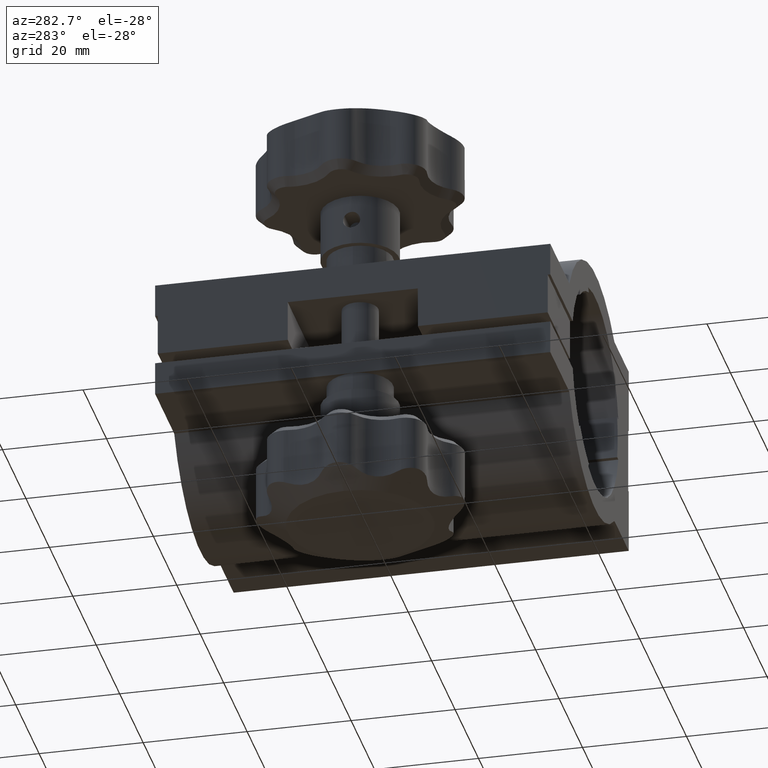
[diagram: clean part render]
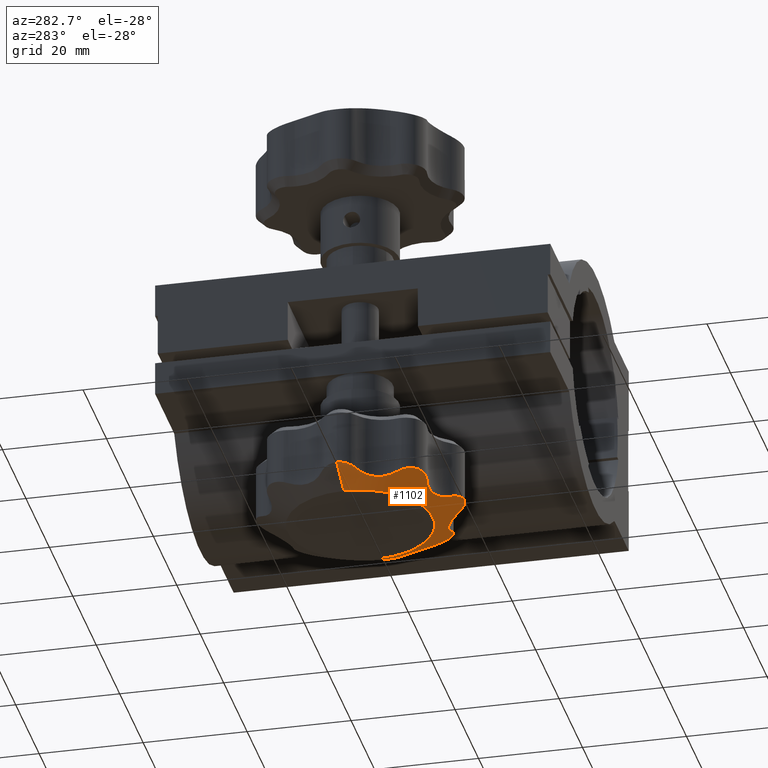
[diagram: same view with one face highlighted and labeled with its STEP entity id]
A machine part, auxiliary view. The second image highlights one B-rep face of the part: STEP entity #1102.
In plain terms, the highlighted conical surface has half-angle 63.435 deg.
Its self-contained STEP definition (entity closure, byte-faithful):
#54 = CARTESIAN_POINT ( 'NONE',  ( -44.66012957589782000, -53.12568092388098500, -37.67053539441126700 ) ) ;
#109 = CARTESIAN_POINT ( 'NONE',  ( -35.40478620523413900, -56.25352793142091200, -38.22485992281697500 ) ) ;
#113 = CARTESIAN_POINT ( 'NONE',  ( -13.88223716818888500, -41.32845871637075400, -38.24033585891610400 ) ) ;
#156 = CARTESIAN_POINT ( 'NONE',  ( -16.71886717815796400, -45.16598530818883000, -39.01692354944882600 ) ) ;
#167 = CARTESIAN_POINT ( 'NONE',  ( -45.46821607378692700, -52.75867977955827800, -37.54453930342222600 ) ) ;
#229 = DIRECTION ( 'NONE',  ( -1.000000000000000000, 0.0000000000000000000, 0.0000000000000000000 ) ) ;
#301 = CARTESIAN_POINT ( 'NONE',  ( -12.94071860659726000, -40.47370662078219500, -37.84174923558720800 ) ) ;
#306 = ORIENTED_EDGE ( 'NONE', *, *, #2606, .T. ) ;
#307 = VECTOR ( 'NONE', #9035, 1000.000000000000100 ) ;
#371 = CARTESIAN_POINT ( 'NONE',  ( -18.89080392035378300, -52.83961310875488200, -37.56684448148186600 ) ) ;
#377 = EDGE_CURVE ( 'NONE', #7988, #5554, #3874, .T. ) ;
#428 = EDGE_CURVE ( 'NONE', #6793, #1251, #4663, .T. ) ;
#500 = CARTESIAN_POINT ( 'NONE',  ( -47.20738803912959000, -47.90910789619256600, -38.46940100193022300 ) ) ;
#547 = CARTESIAN_POINT ( 'NONE',  ( -47.45554102642859800, -45.14396101317564100, -39.03961434932778500 ) ) ;
#550 = CARTESIAN_POINT ( 'NONE',  ( -28.79521379476571900, -56.25352793142079800, -38.22485992281703200 ) ) ;
#562 = CARTESIAN_POINT ( 'NONE',  ( -50.85139008752452100, -40.92084771011150900, -38.01216060073313200 ) ) ;
#576 = CARTESIAN_POINT ( 'NONE',  ( -28.61063215740972900, -55.97279189928720900, -38.34654056907867000 ) ) ;
#581 = CARTESIAN_POINT ( 'NONE',  ( -49.29056716154377700, -42.15159542625189500, -38.65869961730669500 ) ) ;
#592 = CARTESIAN_POINT ( 'NONE',  ( -51.46904075900229700, -40.18043106480287500, -37.75545086922186800 ) ) ;
#606 = CARTESIAN_POINT ( 'NONE',  ( -27.70792939289166100, -54.95640232951831200, -38.74345401188455200 ) ) ;
#638 = CARTESIAN_POINT ( 'NONE',  ( -33.70477250926376900, -57.66767497149130200, -37.63379586593643500 ) ) ;
#831 = B_SPLINE_CURVE_WITH_KNOTS ( 'NONE', 3,
 ( #2196, #2291, #10539, #7261 ),
 .UNSPECIFIED., .F., .F.,
 ( 4, 4 ),
 ( 0.006983299536700530500, 0.008428194713404564600 ),
 .UNSPECIFIED. ) ;
#835 = CARTESIAN_POINT ( 'NONE',  ( -46.10000000000011500, -38.00000000000000000, -40.49999999999996400 ) ) ;
#907 = ORIENTED_EDGE ( 'NONE', *, *, #7511, .T. ) ;
#951 = CARTESIAN_POINT ( 'NONE',  ( -14.76782969554145500, -41.99629979607096400, -38.61009337619768900 ) ) ;
#993 = CARTESIAN_POINT ( 'NONE',  ( -46.17825828219992700, -52.21981348709096000, -37.49609047640726100 ) ) ;
#999 = DIRECTION ( 'NONE',  ( 0.8944271909999160800, 8.238756819837753700E-017, 0.4472135954999574300 ) ) ;
#1102 = ADVANCED_FACE ( 'NONE', ( #3450 ), #10359, .T. ) ;
#1135 = CIRCLE ( 'NONE', #8547, 14.00000000000005300 ) ;
#1203 = CARTESIAN_POINT ( 'NONE',  ( -13.61760040435778900, -41.15213038281837800, -38.12601777575489600 ) ) ;
#1212 = CARTESIAN_POINT ( 'NONE',  ( -42.00169043201688600, -53.13089662217183200, -38.45966632413355800 ) ) ;
#1251 = VERTEX_POINT ( 'NONE', #2050 ) ;
#1282 = CARTESIAN_POINT ( 'NONE',  ( -16.77678188941500200, -49.15710625937498400, -38.02355978083540600 ) ) ;
#1357 = CARTESIAN_POINT ( 'NONE',  ( -17.71814102786622100, -51.90166590177382500, -37.50024724159735000 ) ) ;
#1369 = CARTESIAN_POINT ( 'NONE',  ( -22.23080089748582800, -53.10348109542605500, -38.48199098200522900 ) ) ;
#1387 = CARTESIAN_POINT ( 'NONE',  ( -50.61381992292925200, -41.12729355162103000, -38.11260631183434800 ) ) ;
#1459 = CARTESIAN_POINT ( 'NONE',  ( -52.09999999999999400, -38.00000000000002100, -37.49999999999999300 ) ) ;
#1470 = CARTESIAN_POINT ( 'NONE',  ( -22.90655202098139000, -53.06433490898462700, -38.68178717431253200 ) ) ;
#1474 = CARTESIAN_POINT ( 'NONE',  ( -35.02102367627743700, -56.75120936679206100, -38.01223660148910700 ) ) ;
#1506 = CARTESIAN_POINT ( 'NONE',  ( -29.65075012321517900, -57.17844578804674400, -37.83379426854016000 ) ) ;
#1524 = CARTESIAN_POINT ( 'NONE',  ( -51.27904389336190100, -40.44850539788461700, -37.83354631144492000 ) ) ;
#1537 = CARTESIAN_POINT ( 'NONE',  ( -32.75840555617480700, -57.94889363502431900, -37.52046013489440000 ) ) ;
#1582 = CARTESIAN_POINT ( 'NONE',  ( -34.27574192347815800, -57.36041010367814900, -37.75911893758380700 ) ) ;
#1719 = CARTESIAN_POINT ( 'NONE',  ( -35.40478620523413900, -56.25352793142091200, -38.22485992281697500 ) ) ;
#1747 = CARTESIAN_POINT ( 'NONE',  ( -15.86447905035085300, -43.31969231248008600, -38.95868190350356700 ) ) ;
#1750 = CARTESIAN_POINT ( 'NONE',  ( -40.97482916437672900, -53.09593124593506300, -38.74575812781843400 ) ) ;
#1820 = VERTEX_POINT ( 'NONE', #550 ) ;
#1823 = CARTESIAN_POINT ( 'NONE',  ( -14.34352213587840200, -41.63581438558282600, -38.43960225158907900 ) ) ;
#2050 = CARTESIAN_POINT ( 'NONE',  ( -52.09999999999999400, -38.00000000000002100, -37.49999999999999300 ) ) ;
#2110 = CARTESIAN_POINT ( 'NONE',  ( -17.05083891127135600, -50.75279802072809300, -37.63736774476461000 ) ) ;
#2187 = CARTESIAN_POINT ( 'NONE',  ( -26.90348876721808200, -54.28291368119418800, -38.95993102340418800 ) ) ;
#2196 = CARTESIAN_POINT ( 'NONE',  ( -17.00080158232996300, -47.15378770217299800, -38.67138711132054900 ) ) ;
#2246 = CARTESIAN_POINT ( 'NONE',  ( -51.76733001019321300, -39.60547908493235500, -37.63393594762446500 ) ) ;
#2264 = CARTESIAN_POINT ( 'NONE',  ( -17.00080158232996300, -47.15378770217299800, -38.67138711132054900 ) ) ;
#2271 = CARTESIAN_POINT ( 'NONE',  ( -52.05893524507906300, -38.66032219999979700, -37.51638630186256800 ) ) ;
#2288 = CARTESIAN_POINT ( 'NONE',  ( -33.23925231646457200, -57.83786311334861100, -37.56505322317966000 ) ) ;
#2291 = CARTESIAN_POINT ( 'NONE',  ( -17.00080158232996300, -47.62067722935753300, -38.55036561943661200 ) ) ;
#2439 = CARTESIAN_POINT ( 'NONE',  ( -32.92010242349283500, -57.91848454537629500, -37.53264634346334100 ) ) ;
#2485 = B_SPLINE_CURVE_WITH_KNOTS ( 'NONE', 3,
 ( #6109, #5269, #6248, #9448, #5379, #10344, #6997, #4420, #301, #9548, #1203, #5408 ),
 .UNSPECIFIED., .F., .F.,
 ( 4, 2, 2, 2, 2, 4 ),
 ( 0.004005058143944475000, 0.005005288832176255100, 0.005505404176292147700, 0.006005519520408038700, 0.007005750208639801400, 0.008005980896871562500 ),
 .UNSPECIFIED. ) ;
#2501 = LINE ( 'NONE', #835, #307 ) ;
#2513 = CARTESIAN_POINT ( 'NONE',  ( -17.00080158232996300, -47.15378770217299800, -38.67138711132054900 ) ) ;
#2596 = VECTOR ( 'NONE', #999, 1000.000000000000100 ) ;
#2606 = EDGE_CURVE ( 'NONE', #9718, #10472, #4337, .T. ) ;
#2609 = CARTESIAN_POINT ( 'NONE',  ( -16.29325567920174900, -44.07338276573889100, -39.03452507713995300 ) ) ;
#2646 = CARTESIAN_POINT ( 'NONE',  ( -13.88223716818888500, -41.32845871637075400, -38.24033585891610400 ) ) ;
#2653 = CARTESIAN_POINT ( 'NONE',  ( -47.25698956379532900, -50.46004739861599100, -37.69032643883004100 ) ) ;
#2800 = B_SPLINE_CURVE_WITH_KNOTS ( 'NONE', 3,
 ( #3193, #5614, #9015, #1506, #3259, #7409, #8988, #9783, #6574, #4914, #5765, #9845, #7325, #1537, #2439, #2288, #9914, #638, #10598, #8253, #1582, #10675, #8221, #1474, #9083, #5720 ),
 .UNSPECIFIED., .F., .F.,
 ( 4, 2, 2, 2, 2, 2, 2, 2, 2, 2, 2, 2, 4 ),
 ( 2.535578231248684800E-007, 0.0009895285573015674600, 0.001978803556780010000, 0.002473441056519240500, 0.002968078556258470600, 0.003957353555736923800, 0.004451991055476149500, 0.004946628555215376900, 0.005441266054954603500, 0.005935903554693829200, 0.006430541054433056700, 0.006925178554172282400, 0.007914453553650729500 ),
 .UNSPECIFIED. ) ;
#3007 = CARTESIAN_POINT ( 'NONE',  ( -18.10000000000006200, -38.00000000000000000, -40.49999999999996400 ) ) ;
#3018 = CARTESIAN_POINT ( 'NONE',  ( -28.40475708146340800, -55.70379304802195000, -38.45838642775336100 ) ) ;
#3026 = CARTESIAN_POINT ( 'NONE',  ( -47.34403011697811100, -48.57035664479007400, -38.22485992281786300 ) ) ;
#3120 = CARTESIAN_POINT ( 'NONE',  ( -24.30160313900633200, -53.19602572744708600, -38.96589153346570100 ) ) ;
#3126 = CARTESIAN_POINT ( 'NONE',  ( -47.28991809847259700, -45.82807351241807900, -38.96184153804624400 ) ) ;
#3136 = B_SPLINE_CURVE_WITH_KNOTS ( 'NONE', 3,
 ( #6685, #5988, #9194, #4218, #3444, #54, #4298, #167, #4997, #993, #5073, #6799, #5840, #7632, #2653, #9127, #4144, #9949 ),
 .UNSPECIFIED., .F., .F.,
 ( 4, 2, 2, 2, 2, 2, 2, 2, 4 ),
 ( 2.132076626129120100E-007, 0.0008915703042341947500, 0.001782927400805776700, 0.002674284497377358300, 0.003565641593948940400, 0.004456998690520522000, 0.005348355787092103200, 0.006239712883663685300, 0.007131069980235267400 ),
 .UNSPECIFIED. ) ;
#3185 = VERTEX_POINT ( 'NONE', #9160 ) ;
#3193 = CARTESIAN_POINT ( 'NONE',  ( -28.79521379476571900, -56.25352793142079800, -38.22485992281703200 ) ) ;
#3215 = CARTESIAN_POINT ( 'NONE',  ( -47.34403011697811100, -48.57035664479007400, -38.22485992281786300 ) ) ;
#3237 = VERTEX_POINT ( 'NONE', #4935 ) ;
#3259 = CARTESIAN_POINT ( 'NONE',  ( -29.91857331750082200, -57.36837264774089100, -37.75572514801544300 ) ) ;
#3362 = CARTESIAN_POINT ( 'NONE',  ( -39.23376069904001900, -53.35858938507454500, -39.04038282518996500 ) ) ;
#3395 = CARTESIAN_POINT ( 'NONE',  ( -16.01729742824964500, -43.56412882288135100, -38.99219813928076000 ) ) ;
#3397 = CARTESIAN_POINT ( 'NONE',  ( -16.86452063433292600, -48.52832790717667400, -38.24033585891610400 ) ) ;
#3444 = CARTESIAN_POINT ( 'NONE',  ( -44.09522184706607800, -53.26595328208326700, -37.79349321168053400 ) ) ;
#3450 = FACE_OUTER_BOUND ( 'NONE', #5335, .T. ) ;
#3463 = CARTESIAN_POINT ( 'NONE',  ( -16.91293198357811200, -46.01102566715181300, -38.91583570076403500 ) ) ;
#3490 = ORIENTED_EDGE ( 'NONE', *, *, #6116, .T. ) ;
#3592 = CARTESIAN_POINT ( 'NONE',  ( -42.67035664479234200, -53.24403011697850000, -38.22485992281708900 ) ) ;
#3671 = VERTEX_POINT ( 'NONE', #8254 ) ;
#3808 = CARTESIAN_POINT ( 'NONE',  ( -16.86452063433292600, -48.52832790717667400, -38.24033585891610400 ) ) ;
#3853 = ORIENTED_EDGE ( 'NONE', *, *, #3990, .T. ) ;
#3874 = B_SPLINE_CURVE_WITH_KNOTS ( 'NONE', 3,
 ( #3808, #8652, #1282, #5490, #4598, #7850, #7884, #4529, #2110, #6328, #4489, #10421, #1357, #10318, #5355, #371, #5631, #8896, #10556, #4783, #6494, #4713, #3909, #8830 ),
 .UNSPECIFIED., .F., .F.,
 ( 4, 2, 2, 2, 2, 2, 2, 2, 2, 2, 2, 4 ),
 ( 2.138698642237757300E-007, 0.001000929719184368800, 0.001501287643844431300, 0.002001645568504493700, 0.002502003493164556100, 0.003002361417824619400, 0.004003077267144724600, 0.005003793116464830300, 0.005504151041124884400, 0.006004508965784937700, 0.007005224815105033800, 0.008005940664425129100 ),
 .UNSPECIFIED. ) ;
#3909 = CARTESIAN_POINT ( 'NONE',  ( -21.25971093928263000, -53.29795324385062100, -38.12596214254276100 ) ) ;
#3990 = EDGE_CURVE ( 'NONE', #9959, #7857, #7660, .T. ) ;
#4053 = CARTESIAN_POINT ( 'NONE',  ( -47.41370849898478900, -49.31370849898476600, -37.98015667156386100 ) ) ;
#4144 = CARTESIAN_POINT ( 'NONE',  ( -47.41370849898479600, -49.59880840360024500, -37.89545104399661600 ) ) ;
#4199 = CARTESIAN_POINT ( 'NONE',  ( -42.33955705669013300, -53.17567287144015600, -38.34719525943001600 ) ) ;
#4218 = CARTESIAN_POINT ( 'NONE',  ( -43.80280743036491500, -53.30498561043226100, -37.86745391469082000 ) ) ;
#4238 = CARTESIAN_POINT ( 'NONE',  ( -15.34599667587986000, -42.62499657811743200, -38.81058077844889500 ) ) ;
#4298 = CARTESIAN_POINT ( 'NONE',  ( -44.93499254157077200, -53.02511299872189500, -37.62062735974647200 ) ) ;
#4321 = CARTESIAN_POINT ( 'NONE',  ( -16.98358796142307600, -46.58444936998705500, -38.80910500011903300 ) ) ;
#4337 = B_SPLINE_CURVE_WITH_KNOTS ( 'NONE', 3,
 ( #113, #1823, #951, #4238, #5863, #1747, #3395, #2609, #8419, #4987, #156, #8464, #3463, #4321, #5828, #2513 ),
 .UNSPECIFIED., .F., .F.,
 ( 4, 2, 2, 2, 2, 2, 2, 4 ),
 ( 2.523011973762757000E-007, 0.001746014110073183100, 0.002618895014511076400, 0.003491775918948967200, 0.004364656823386857600, 0.005237537727824748000, 0.006110418632262639200, 0.006983299536700530500 ),
 .UNSPECIFIED. ) ;
#4339 = ORIENTED_EDGE ( 'NONE', *, *, #377, .T. ) ;
#4353 = ORIENTED_EDGE ( 'NONE', *, *, #4427, .T. ) ;
#4420 = CARTESIAN_POINT ( 'NONE',  ( -12.74656081910106700, -40.20429954207232000, -37.76188430901044800 ) ) ;
#4427 = EDGE_CURVE ( 'NONE', #10472, #7988, #831, .T. ) ;
#4429 = EDGE_CURVE ( 'NONE', #7236, #6793, #9203, .T. ) ;
#4489 = CARTESIAN_POINT ( 'NONE',  ( -17.25944995574649700, -51.20747206479042300, -37.56706851643818400 ) ) ;
#4529 = CARTESIAN_POINT ( 'NONE',  ( -16.99502649657285900, -50.59828612999255200, -37.66569268401077200 ) ) ;
#4598 = CARTESIAN_POINT ( 'NONE',  ( -16.81326742720492000, -49.80255016953155700, -37.84386468517838200 ) ) ;
#4663 = B_SPLINE_CURVE_WITH_KNOTS ( 'NONE', 3,
 ( #9798, #1387, #562, #1524, #592, #7205, #2246, #7278, #10616, #2271, #6365, #1459 ),
 .UNSPECIFIED., .F., .F.,
 ( 4, 2, 2, 2, 2, 4 ),
 ( 2.535578288699374200E-007, 0.0009902620523125525100, 0.001980270546796235100, 0.002475274794038081300, 0.002970279041279927500, 0.003960287535763596500 ),
 .UNSPECIFIED. ) ;
#4713 = CARTESIAN_POINT ( 'NONE',  ( -20.94308388291375400, -53.32317277148744900, -38.02363117736458500 ) ) ;
#4783 = CARTESIAN_POINT ( 'NONE',  ( -19.97294497304547900, -53.24347505883435600, -37.76170017255967800 ) ) ;
#4836 = CARTESIAN_POINT ( 'NONE',  ( -12.10036134072747800, -38.00000000000000000, -37.50018067036366900 ) ) ;
#4853 = ORIENTED_EDGE ( 'NONE', *, *, #8369, .F. ) ;
#4861 = CARTESIAN_POINT ( 'NONE',  ( -47.39036325991224200, -48.81533370683163000, -38.13602571884774800 ) ) ;
#4870 = CARTESIAN_POINT ( 'NONE',  ( -37.30561069068184600, -54.27617757221818100, -38.96184166140035600 ) ) ;
#4892 = ORIENTED_EDGE ( 'NONE', *, *, #4429, .T. ) ;
#4914 = CARTESIAN_POINT ( 'NONE',  ( -31.43727512282957200, -57.95851464226357300, -37.51655466047842700 ) ) ;
#4935 = CARTESIAN_POINT ( 'NONE',  ( -42.67035664479234200, -53.24403011697850000, -38.22485992281708900 ) ) ;
#4987 = CARTESIAN_POINT ( 'NONE',  ( -16.63061088791818800, -44.88829972653947200, -39.03442346088841200 ) ) ;
#4997 = CARTESIAN_POINT ( 'NONE',  ( -45.71882771049347800, -52.59617816777137000, -37.51960350899870600 ) ) ;
#5073 = CARTESIAN_POINT ( 'NONE',  ( -46.39081230745866700, -52.00171010773195200, -37.49765542030375800 ) ) ;
#5147 = CARTESIAN_POINT ( 'NONE',  ( -18.10000000000000500, -38.00000000000000000, -40.49999999999996400 ) ) ;
#5267 = ORIENTED_EDGE ( 'NONE', *, *, #428, .T. ) ;
#5269 = CARTESIAN_POINT ( 'NONE',  ( -12.10036134072748100, -38.33744718891065900, -37.50018067036366900 ) ) ;
#5285 = VERTEX_POINT ( 'NONE', #109 ) ;
#5335 = EDGE_LOOP ( 'NONE', ( #10735, #3853, #7126, #306, #4353, #4339, #3490, #5347, #9729, #907, #9615, #4892, #5267, #4853 ) ) ;
#5347 = ORIENTED_EDGE ( 'NONE', *, *, #9464, .T. ) ;
#5355 = CARTESIAN_POINT ( 'NONE',  ( -18.46072772368678000, -52.58478337521376700, -37.51702702024471800 ) ) ;
#5379 = CARTESIAN_POINT ( 'NONE',  ( -12.31891990062509400, -39.31459869563283100, -37.58796043889761800 ) ) ;
#5408 = CARTESIAN_POINT ( 'NONE',  ( -13.88223716818888500, -41.32845871637075400, -38.24033585891610400 ) ) ;
#5490 = CARTESIAN_POINT ( 'NONE',  ( -16.79669351951544000, -49.63945824390315000, -37.88685030365017100 ) ) ;
#5536 = CARTESIAN_POINT ( 'NONE',  ( -21.57167209282331300, -53.23547936566705400, -38.24033585891610400 ) ) ;
#5542 = CARTESIAN_POINT ( 'NONE',  ( -47.16430099125686600, -47.23053952307256500, -38.67214242902347400 ) ) ;
#5554 = VERTEX_POINT ( 'NONE', #10754 ) ;
#5614 = CARTESIAN_POINT ( 'NONE',  ( -28.97257494447845300, -56.51362707318979500, -38.11268948027718300 ) ) ;
#5631 = CARTESIAN_POINT ( 'NONE',  ( -19.04105235144981700, -52.91633345922384300, -37.58778657505536800 ) ) ;
#5720 = CARTESIAN_POINT ( 'NONE',  ( -35.40478620523413900, -56.25352793142091200, -38.22485992281697500 ) ) ;
#5765 = CARTESIAN_POINT ( 'NONE',  ( -31.76383833199641800, -57.99975193964031200, -37.50009922414818000 ) ) ;
#5828 = CARTESIAN_POINT ( 'NONE',  ( -17.00080158232996700, -46.87173336402300800, -38.74449784696093200 ) ) ;
#5840 = CARTESIAN_POINT ( 'NONE',  ( -46.91087558484684200, -51.27808679023788600, -37.55531025137107500 ) ) ;
#5863 = CARTESIAN_POINT ( 'NONE',  ( -15.52958192572219100, -42.85081328663669400, -38.86816448844225400 ) ) ;
#5988 = CARTESIAN_POINT ( 'NONE',  ( -42.94907078832289200, -53.29674404105900700, -38.12379189273537600 ) ) ;
#5991 = DIRECTION ( 'NONE',  ( 5.637403065552395600E-017, -5.656901045156273600E-017, 1.000000000000000000 ) ) ;
#6109 = CARTESIAN_POINT ( 'NONE',  ( -12.10036134072747800, -38.00000000000000000, -37.50018067036366900 ) ) ;
#6116 = EDGE_CURVE ( 'NONE', #5554, #1820, #7388, .T. ) ;
#6248 = CARTESIAN_POINT ( 'NONE',  ( -12.14286104056184700, -38.67016825811376200, -37.51713997985302700 ) ) ;
#6313 = CARTESIAN_POINT ( 'NONE',  ( -48.37422213554937400, -43.20867330968551600, -38.96229445392913200 ) ) ;
#6328 = CARTESIAN_POINT ( 'NONE',  ( -17.18272396788172100, -51.05694850998777000, -37.58808820424979300 ) ) ;
#6346 = CARTESIAN_POINT ( 'NONE',  ( -48.00449307061708000, -43.81583264054539500, -39.04038281899772800 ) ) ;
#6355 = B_SPLINE_CURVE_WITH_KNOTS ( 'NONE', 3,
 ( #1719, #10704, #7505, #4870, #6707, #3362, #7818, #1750, #6939, #1212, #4199, #3592 ),
 .UNSPECIFIED., .F., .F.,
 ( 4, 2, 2, 2, 2, 4 ),
 ( 2.514968969073706100E-007, 0.002128670117940541900, 0.004257088738984176000, 0.006385507360027810900, 0.007449716670549627400, 0.008513925981071443100 ),
 .UNSPECIFIED. ) ;
#6365 = CARTESIAN_POINT ( 'NONE',  ( -52.09999999999999400, -38.33348397388260100, -37.49999999999999300 ) ) ;
#6494 = CARTESIAN_POINT ( 'NONE',  ( -20.30088793460279500, -53.29676900332197000, -37.84158332470186500 ) ) ;
#6507 = EDGE_CURVE ( 'NONE', #3185, #9959, #1135, .T. ) ;
#6574 = CARTESIAN_POINT ( 'NONE',  ( -30.95713575936924800, -57.83681142831475300, -37.56547649085297300 ) ) ;
#6685 = CARTESIAN_POINT ( 'NONE',  ( -42.67035664479234200, -53.24403011697850000, -38.22485992281708900 ) ) ;
#6707 = CARTESIAN_POINT ( 'NONE',  ( -37.90646326549448700, -53.90955074277695800, -39.03961434304847000 ) ) ;
#6793 = VERTEX_POINT ( 'NONE', #7830 ) ;
#6799 = CARTESIAN_POINT ( 'NONE',  ( -46.75568551917754700, -51.53174576908658400, -37.52741698941338900 ) ) ;
#6801 = DIRECTION ( 'NONE',  ( -1.000000000000000000, 0.0000000000000000000, 0.0000000000000000000 ) ) ;
#6939 = CARTESIAN_POINT ( 'NONE',  ( -41.31994499416049400, -53.09118788548841600, -38.65869970858172200 ) ) ;
#6997 = CARTESIAN_POINT ( 'NONE',  ( -12.51100925527873600, -39.77287906825524300, -37.66576236243309200 ) ) ;
#7048 = CARTESIAN_POINT ( 'NONE',  ( -32.10000000000005800, -38.00000000000000000, -40.49999999999996400 ) ) ;
#7126 = ORIENTED_EDGE ( 'NONE', *, *, #8603, .T. ) ;
#7156 = CARTESIAN_POINT ( 'NONE',  ( -26.30068258738139900, -53.91388956560187000, -39.03871384634465600 ) ) ;
#7205 = CARTESIAN_POINT ( 'NONE',  ( -51.69905449257419100, -39.75299331873385000, -37.66163561037067400 ) ) ;
#7236 = VERTEX_POINT ( 'NONE', #3026 ) ;
#7261 = CARTESIAN_POINT ( 'NONE',  ( -16.86452063433292600, -48.52832790717667400, -38.24033585891610400 ) ) ;
#7278 = CARTESIAN_POINT ( 'NONE',  ( -51.88640298345663400, -39.30000959330676800, -37.58577770716812700 ) ) ;
#7325 = CARTESIAN_POINT ( 'NONE',  ( -32.43073438627177300, -57.98972099060512200, -37.50410910604372800 ) ) ;
#7348 = CARTESIAN_POINT ( 'NONE',  ( -47.41370849898478900, -49.06315738772107000, -38.05459755622807400 ) ) ;
#7388 = B_SPLINE_CURVE_WITH_KNOTS ( 'NONE', 3,
 ( #5536, #1369, #1470, #3120, #8944, #7156, #2187, #606, #8008, #3018, #576, #10671 ),
 .UNSPECIFIED., .F., .F.,
 ( 4, 2, 2, 2, 2, 4 ),
 ( 2.141342634713260400E-007, 0.002117339487647714900, 0.004234464841031958800, 0.006351590194416202600, 0.007410152871108322300, 0.008468715547800443800 ),
 .UNSPECIFIED. ) ;
#7409 = CARTESIAN_POINT ( 'NONE',  ( -30.34560456405138900, -57.59836571524004300, -37.66191565780236800 ) ) ;
#7505 = CARTESIAN_POINT ( 'NONE',  ( -36.22509184117160400, -55.17904685311620500, -38.67214230809170100 ) ) ;
#7511 = EDGE_CURVE ( 'NONE', #3237, #3671, #3136, .T. ) ;
#7632 = CARTESIAN_POINT ( 'NONE',  ( -47.16353129579629000, -50.73771295476997500, -37.63748132061859100 ) ) ;
#7660 = LINE ( 'NONE', #5147, #2596 ) ;
#7682 = CARTESIAN_POINT ( 'NONE',  ( -32.10000000000005800, -38.00000000000000000, -40.49999999999996400 ) ) ;
#7818 = CARTESIAN_POINT ( 'NONE',  ( -39.92452483392815300, -53.19070104087769800, -38.96229440099521900 ) ) ;
#7830 = CARTESIAN_POINT ( 'NONE',  ( -50.35352793142562400, -41.30478620523091100, -38.22485992281480800 ) ) ;
#7850 = CARTESIAN_POINT ( 'NONE',  ( -16.86647890536093200, -50.12546935347901900, -37.76518380246589900 ) ) ;
#7857 = VERTEX_POINT ( 'NONE', #4836 ) ;
#7884 = CARTESIAN_POINT ( 'NONE',  ( -16.90284501860696800, -50.28462221413445800, -37.72960049356522200 ) ) ;
#7889 = DIRECTION ( 'NONE',  ( 5.637403065552395600E-017, -5.656901045156273600E-017, 1.000000000000000000 ) ) ;
#7969 = EDGE_CURVE ( 'NONE', #5285, #3237, #6355, .T. ) ;
#7988 = VERTEX_POINT ( 'NONE', #3397 ) ;
#8008 = CARTESIAN_POINT ( 'NONE',  ( -27.95370301910157500, -55.19610386475298500, -38.65661600084086300 ) ) ;
#8013 = CARTESIAN_POINT ( 'NONE',  ( -47.34403011697811100, -48.57035664479007400, -38.22485992281786300 ) ) ;
#8221 = CARTESIAN_POINT ( 'NONE',  ( -34.66672438758041600, -57.07202034376800300, -37.87824560731821300 ) ) ;
#8253 = CARTESIAN_POINT ( 'NONE',  ( -34.13825877744386600, -57.44554455488658100, -37.72424744362870500 ) ) ;
#8254 = CARTESIAN_POINT ( 'NONE',  ( -47.41370849898478900, -49.31370849898476600, -37.98015667156386100 ) ) ;
#8369 = EDGE_CURVE ( 'NONE', #3185, #1251, #2501, .T. ) ;
#8419 = CARTESIAN_POINT ( 'NONE',  ( -16.41679010052098100, -44.33920095974608700, -39.04331900959734700 ) ) ;
#8464 = CARTESIAN_POINT ( 'NONE',  ( -16.86003128352588100, -45.72734751288747600, -38.95763062717232800 ) ) ;
#8547 = AXIS2_PLACEMENT_3D ( 'NONE', #7048, #7889, #229 ) ;
#8603 = EDGE_CURVE ( 'NONE', #7857, #9718, #2485, .T. ) ;
#8652 = CARTESIAN_POINT ( 'NONE',  ( -16.80205094417410200, -48.84026814796041500, -38.12596980974650800 ) ) ;
#8830 = CARTESIAN_POINT ( 'NONE',  ( -21.57167209282331300, -53.23547936566705400, -38.24033585891610400 ) ) ;
#8896 = CARTESIAN_POINT ( 'NONE',  ( -19.34615127184594700, -53.04878044121581100, -37.63717544867556300 ) ) ;
#8914 = CARTESIAN_POINT ( 'NONE',  ( -49.80071224838133000, -41.69760700570771000, -38.45966624540494600 ) ) ;
#8944 = CARTESIAN_POINT ( 'NONE',  ( -24.98183047445817800, -53.36371215772231100, -39.04125484191978000 ) ) ;
#8950 = CARTESIAN_POINT ( 'NONE',  ( -50.35352793142562400, -41.30478620523091100, -38.22485992281480800 ) ) ;
#8988 = CARTESIAN_POINT ( 'NONE',  ( -30.49297567660136100, -57.66664716126478400, -37.63421277690569200 ) ) ;
#9015 = CARTESIAN_POINT ( 'NONE',  ( -29.17884699603547800, -56.75103757042896300, -38.01230968559972500 ) ) ;
#9035 = DIRECTION ( 'NONE',  ( -0.8944271909999160800, -2.425201689670541500E-016, 0.4472135954999575400 ) ) ;
#9068 = B_SPLINE_CURVE_WITH_KNOTS ( 'NONE', 3,
 ( #4053, #7348, #4861, #3215 ),
 .UNSPECIFIED., .F., .F.,
 ( 4, 4 ),
 ( 0.007131069980235267400, 0.007914411214179276400 ),
 .UNSPECIFIED. ) ;
#9083 = CARTESIAN_POINT ( 'NONE',  ( -35.22739763615317100, -56.51366728354128800, -38.11267213914762000 ) ) ;
#9127 = CARTESIAN_POINT ( 'NONE',  ( -47.38254545786539000, -49.89097395764504500, -37.81905060147474300 ) ) ;
#9160 = CARTESIAN_POINT ( 'NONE',  ( -46.10000000000011500, -38.00000000000000000, -40.49999999999996400 ) ) ;
#9194 = CARTESIAN_POINT ( 'NONE',  ( -43.23136576527125600, -53.31975918341546400, -38.03232056820716200 ) ) ;
#9203 = B_SPLINE_CURVE_WITH_KNOTS ( 'NONE', 3,
 ( #8013, #500, #5542, #3126, #547, #6346, #6313, #10504, #581, #8914, #10569, #8950 ),
 .UNSPECIFIED., .F., .F.,
 ( 4, 2, 2, 2, 2, 4 ),
 ( 2.145863560674999600E-007, 0.002128633184702673700, 0.004257051783049279500, 0.006385470381395886100, 0.007449679680569185900, 0.008513888979742485800 ),
 .UNSPECIFIED. ) ;
#9448 = CARTESIAN_POINT ( 'NONE',  ( -12.26689745995458700, -39.15419908624095800, -37.56700579078290800 ) ) ;
#9464 = EDGE_CURVE ( 'NONE', #1820, #5285, #2800, .T. ) ;
#9548 = CARTESIAN_POINT ( 'NONE',  ( -13.37598503456205300, -40.94618835726304700, -38.02373088158837100 ) ) ;
#9615 = ORIENTED_EDGE ( 'NONE', *, *, #10093, .T. ) ;
#9718 = VERTEX_POINT ( 'NONE', #2646 ) ;
#9729 = ORIENTED_EDGE ( 'NONE', *, *, #7969, .T. ) ;
#9783 = CARTESIAN_POINT ( 'NONE',  ( -30.79814125205136900, -57.78576179673202500, -37.58603638219766900 ) ) ;
#9798 = CARTESIAN_POINT ( 'NONE',  ( -50.35352793142562400, -41.30478620523091100, -38.22485992281480800 ) ) ;
#9845 = CARTESIAN_POINT ( 'NONE',  ( -32.26363370570191300, -58.00012238210051400, -37.49995104715761600 ) ) ;
#9914 = CARTESIAN_POINT ( 'NONE',  ( -33.39777020126916100, -57.78720569915211100, -37.58545362428013400 ) ) ;
#9949 = CARTESIAN_POINT ( 'NONE',  ( -47.41370849898478900, -49.31370849898476600, -37.98015667156386100 ) ) ;
#9959 = VERTEX_POINT ( 'NONE', #3007 ) ;
#10093 = EDGE_CURVE ( 'NONE', #3671, #7236, #9068, .T. ) ;
#10318 = CARTESIAN_POINT ( 'NONE',  ( -18.19531898611157700, -52.37931321446080800, -37.50011448571286400 ) ) ;
#10344 = CARTESIAN_POINT ( 'NONE',  ( -12.44103100699972100, -39.62378642583037400, -37.63736143773575500 ) ) ;
#10359 = CONICAL_SURFACE ( 'NONE', #10647, 14.00000000000005300, 1.107148717794089500 ) ;
#10421 = CARTESIAN_POINT ( 'NONE',  ( -17.51443786194440500, -51.63824124013598300, -37.51709815624109000 ) ) ;
#10472 = VERTEX_POINT ( 'NONE', #2264 ) ;
#10504 = CARTESIAN_POINT ( 'NONE',  ( -49.04988742647556400, -42.39898324980745800, -38.74575806462043900 ) ) ;
#10539 = CARTESIAN_POINT ( 'NONE',  ( -16.95461977240554700, -48.07842097225623200, -38.40528437120648400 ) ) ;
#10556 = CARTESIAN_POINT ( 'NONE',  ( -19.50112276749170100, -53.10479314949073200, -37.66557426353956100 ) ) ;
#10569 = CARTESIAN_POINT ( 'NONE',  ( -50.07128146753955600, -41.49036093906900600, -38.34719524211734400 ) ) ;
#10598 = CARTESIAN_POINT ( 'NONE',  ( -33.85277306221466600, -57.59917528274328200, -37.66158631352322300 ) ) ;
#10616 = CARTESIAN_POINT ( 'NONE',  ( -51.93741235320779700, -39.14086145174756800, -37.56523457982456200 ) ) ;
#10647 = AXIS2_PLACEMENT_3D ( 'NONE', #7682, #5991, #6801 ) ;
#10671 = CARTESIAN_POINT ( 'NONE',  ( -28.79521379476571900, -56.25352793142079800, -38.22485992281703200 ) ) ;
#10675 = CARTESIAN_POINT ( 'NONE',  ( -34.54019230307989100, -57.17358953024368900, -37.83613952477257700 ) ) ;
#10704 = CARTESIAN_POINT ( 'NONE',  ( -35.77573884489887500, -55.68933436557841800, -38.46940080767086600 ) ) ;
#10735 = ORIENTED_EDGE ( 'NONE', *, *, #6507, .T. ) ;
#10754 = CARTESIAN_POINT ( 'NONE',  ( -21.57167209282331300, -53.23547936566705400, -38.24033585891610400 ) ) ;